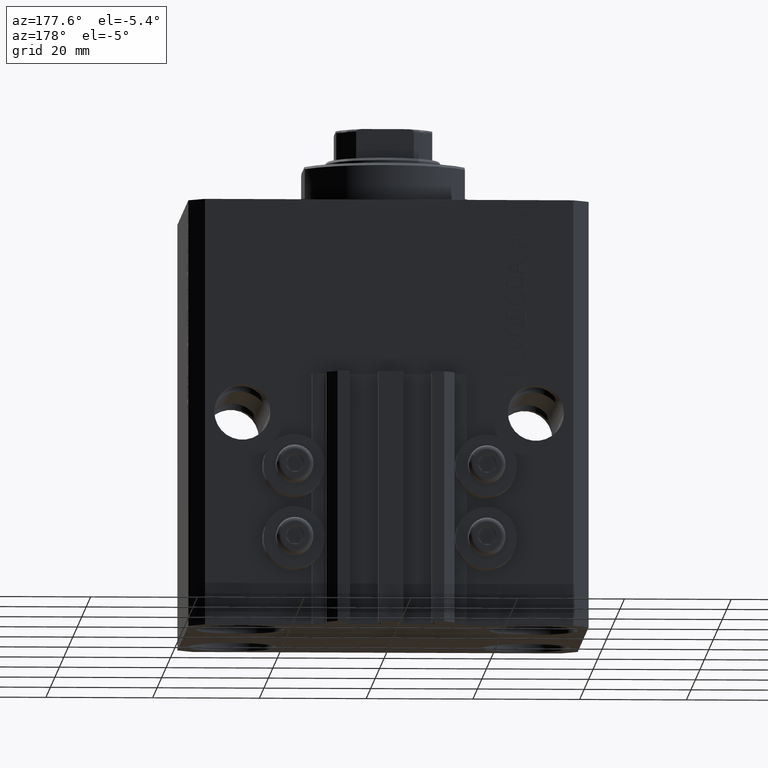
[diagram: clean part render]
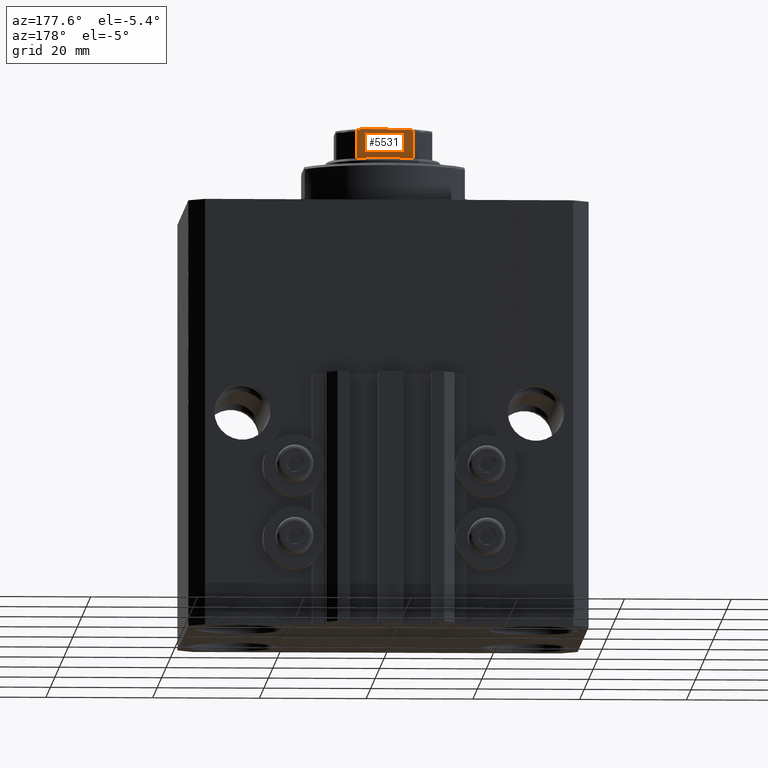
[diagram: same view with one face highlighted and labeled with its STEP entity id]
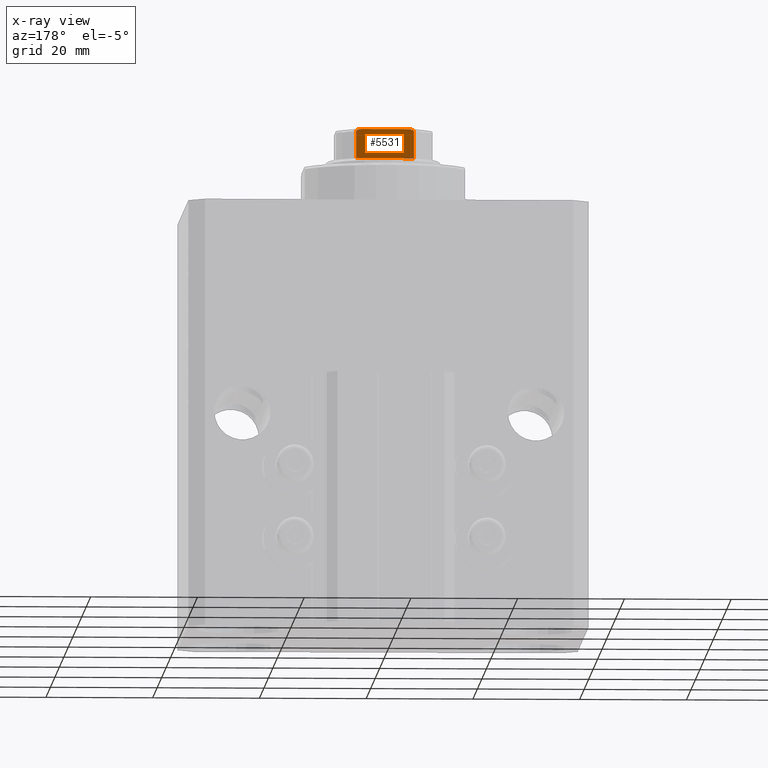
[diagram: x-ray of the same camera — body ghosted, the highlighted face saturated]
A machine part, auxiliary view. The second image highlights one B-rep face of the part: STEP entity #5531.
The next image is the same camera in x-ray: the body ghosted, the highlighted face saturated — about 0% of this face is hidden behind the body in this view.
In plain terms, the highlighted planar face has unit normal (0, -1, 0).
Its self-contained STEP definition (entity closure, byte-faithful):
#130 = CARTESIAN_POINT ( 'NONE',  ( -5.408326913195986130, 8.999999999999998224, 79.60000000000002274 ) ) ;
#249 = CARTESIAN_POINT ( 'NONE',  ( 5.335288102212754069, 8.999999999999996447, 84.79569054027621178 ) ) ;
#2474 = PLANE ( 'NONE',  #5787 ) ;
#2950 = DIRECTION ( 'NONE',  ( -0.000000000000000000, -0.000000000000000000, 1.000000000000000000 ) ) ;
#3651 = VERTEX_POINT ( 'NONE', #13632 ) ;
#3729 = EDGE_CURVE ( 'NONE', #24567, #39260, #31602, .T. ) ;
#5262 = LINE ( 'NONE', #37687, #32142 ) ;
#5531 = ADVANCED_FACE ( 'NONE', ( #21375 ), #2474, .F. ) ;
#5787 = AXIS2_PLACEMENT_3D ( 'NONE', #13822, #6719, #35806 ) ;
#6059 = CARTESIAN_POINT ( 'NONE',  ( -4.358898943540678417, 8.999999999999998224, 85.10000000000000853 ) ) ;
#6127 = EDGE_CURVE ( 'NONE', #3651, #37124, #36810, .T. ) ;
#6380 = CARTESIAN_POINT ( 'NONE',  ( -5.408326913195988794, 8.999999999999998224, 84.65357207273353879 ) ) ;
#6472 = CARTESIAN_POINT ( 'NONE',  ( 4.358898943540677529, 8.999999999999998224, 85.10000000000000853 ) ) ;
#6719 = DIRECTION ( 'NONE',  ( 0.000000000000000000, -1.000000000000000000, 0.000000000000000000 ) ) ;
#6730 = LINE ( 'NONE', #25163, #14296 ) ;
#7359 = CARTESIAN_POINT ( 'NONE',  ( 4.358898943540677529, 8.999999999999998224, 85.10000000000000853 ) ) ;
#8085 = VERTEX_POINT ( 'NONE', #15280 ) ;
#9231 = CARTESIAN_POINT ( 'NONE',  ( -5.408326913195988794, 8.999999999999998224, 84.60000000000000853 ) ) ;
#9943 = CARTESIAN_POINT ( 'NONE',  ( -5.174818616237128133, 9.000000000000000000, 84.93252188465335450 ) ) ;
#11602 = CARTESIAN_POINT ( 'NONE',  ( 4.569272810556668674, 9.000000000000000000, 85.10000000000002274 ) ) ;
#12695 = EDGE_CURVE ( 'NONE', #24567, #8085, #6730, .T. ) ;
#13245 = CARTESIAN_POINT ( 'NONE',  ( -4.778533838065923689, 8.999999999999998224, 85.07782914764696613 ) ) ;
#13632 = CARTESIAN_POINT ( 'NONE',  ( -5.408326913195988794, 8.999999999999998224, 84.60000000000000853 ) ) ;
#13822 = CARTESIAN_POINT ( 'NONE',  ( -9.000000000000000000, 8.999999999999998224, 85.10000000000000853 ) ) ;
#13835 = EDGE_CURVE ( 'NONE', #22527, #8085, #35163, .T. ) ;
#14296 = VECTOR ( 'NONE', #2950, 1000.000000000000000 ) ;
#14683 = CARTESIAN_POINT ( 'NONE',  ( 5.408326913195986130, 8.999999999999998224, 84.65374346731883293 ) ) ;
#15280 = CARTESIAN_POINT ( 'NONE',  ( 5.408326913195989682, 8.999999999999998224, 84.60000000000000853 ) ) ;
#16716 = CARTESIAN_POINT ( 'NONE',  ( -9.000000000000000000, 8.999999999999998224, 79.60000000000000853 ) ) ;
#18528 = ORIENTED_EDGE ( 'NONE', *, *, #13835, .T. ) ;
#18540 = VECTOR ( 'NONE', #31132, 1000.000000000000000 ) ;
#20351 = CARTESIAN_POINT ( 'NONE',  ( -5.335664150027726649, 8.999999999999998224, 84.79518433800129174 ) ) ;
#20808 = CARTESIAN_POINT ( 'NONE',  ( -4.358898943540678417, 8.999999999999998224, 85.10000000000000853 ) ) ;
#21375 = FACE_OUTER_BOUND ( 'NONE', #35544, .T. ) ;
#21781 = CARTESIAN_POINT ( 'NONE',  ( 5.074490744525480324, 9.000000000000000000, 84.97872007843329811 ) ) ;
#22127 = CARTESIAN_POINT ( 'NONE',  ( 5.408326913195989682, 8.999999999999998224, 79.60000000000002274 ) ) ;
#22527 = VERTEX_POINT ( 'NONE', #6472 ) ;
#23228 = ORIENTED_EDGE ( 'NONE', *, *, #6127, .T. ) ;
#24526 = LINE ( 'NONE', #38988, #27573 ) ;
#24567 = VERTEX_POINT ( 'NONE', #22127 ) ;
#25163 = CARTESIAN_POINT ( 'NONE',  ( 5.408326913195989682, 8.999999999999998224, -0.001000000000001000089 ) ) ;
#25558 = CARTESIAN_POINT ( 'NONE',  ( 5.408326913195989682, 8.999999999999998224, 84.60000000000000853 ) ) ;
#26020 = CARTESIAN_POINT ( 'NONE',  ( 4.775913644518301027, 8.999999999999998224, 85.07814607430833576 ) ) ;
#27573 = VECTOR ( 'NONE', #40456, 1000.000000000000000 ) ;
#28049 = ORIENTED_EDGE ( 'NONE', *, *, #3729, .T. ) ;
#29372 = ORIENTED_EDGE ( 'NONE', *, *, #35411, .T. ) ;
#31132 = DIRECTION ( 'NONE',  ( -1.000000000000000000, -0.000000000000000000, -0.000000000000000000 ) ) ;
#31602 = LINE ( 'NONE', #16716, #18540 ) ;
#32142 = VECTOR ( 'NONE', #45023, 1000.000000000000000 ) ;
#32654 = CARTESIAN_POINT ( 'NONE',  ( 5.297634495023393342, 8.999999999999998224, 84.83442280527799539 ) ) ;
#33782 = EDGE_CURVE ( 'NONE', #22527, #37124, #24526, .T. ) ;
#34531 = CARTESIAN_POINT ( 'NONE',  ( -4.569278586016989330, 8.999999999999996447, 85.10000000000000853 ) ) ;
#34780 = CARTESIAN_POINT ( 'NONE',  ( -5.390954572107327536, 8.999999999999996447, 84.70536285214001282 ) ) ;
#35163 = B_SPLINE_CURVE_WITH_KNOTS ( 'NONE', 3,
 ( #7359, #11602, #26020, #21781, #40468, #32654, #249, #43562, #14683, #25558 ),
 .UNSPECIFIED., .F., .F.,
 ( 4, 2, 2, 2, 4 ),
 ( 8.673617379884035472E-19, 0.0006221106941441109433, 0.0009331660412161594219, 0.001088693714752182740, 0.001244221388288205840 ),
 .UNSPECIFIED. ) ;
#35411 = EDGE_CURVE ( 'NONE', #39260, #3651, #5262, .T. ) ;
#35544 = EDGE_LOOP ( 'NONE', ( #44944, #18528, #46419, #28049, #29372, #23228 ) ) ;
#35806 = DIRECTION ( 'NONE',  ( 0.000000000000000000, -0.000000000000000000, -1.000000000000000000 ) ) ;
#36810 = B_SPLINE_CURVE_WITH_KNOTS ( 'NONE', 3,
 ( #9231, #6380, #34780, #20351, #38808, #9943, #41653, #13245, #34531, #20808 ),
 .UNSPECIFIED., .F., .F.,
 ( 4, 2, 2, 2, 4 ),
 ( 0.000000000000000000, 0.0001582447020888231800, 0.0003164894041776463601, 0.0006329788083552646393, 0.001265957616710501089 ),
 .UNSPECIFIED. ) ;
#37124 = VERTEX_POINT ( 'NONE', #6059 ) ;
#37687 = CARTESIAN_POINT ( 'NONE',  ( -5.408326913195988794, 8.999999999999998224, -0.001000000000001000089 ) ) ;
#38808 = CARTESIAN_POINT ( 'NONE',  ( -5.298186678102094760, 8.999999999999998224, 84.83387812150047580 ) ) ;
#38988 = CARTESIAN_POINT ( 'NONE',  ( -9.000000000000000000, 8.999999999999998224, 85.10000000000000853 ) ) ;
#39260 = VERTEX_POINT ( 'NONE', #130 ) ;
#40456 = DIRECTION ( 'NONE',  ( -1.000000000000000000, -0.000000000000000000, -0.000000000000000000 ) ) ;
#40468 = CARTESIAN_POINT ( 'NONE',  ( 5.173732970196573966, 9.000000000000000000, 84.93318086437987802 ) ) ;
#41653 = CARTESIAN_POINT ( 'NONE',  ( -5.077896145217239088, 9.000000000000000000, 84.97730167760671804 ) ) ;
#43562 = CARTESIAN_POINT ( 'NONE',  ( 5.390945448132526074, 8.999999999999998224, 84.70548165389705275 ) ) ;
#44944 = ORIENTED_EDGE ( 'NONE', *, *, #33782, .F. ) ;
#45023 = DIRECTION ( 'NONE',  ( -0.000000000000000000, -0.000000000000000000, 1.000000000000000000 ) ) ;
#46419 = ORIENTED_EDGE ( 'NONE', *, *, #12695, .F. ) ;